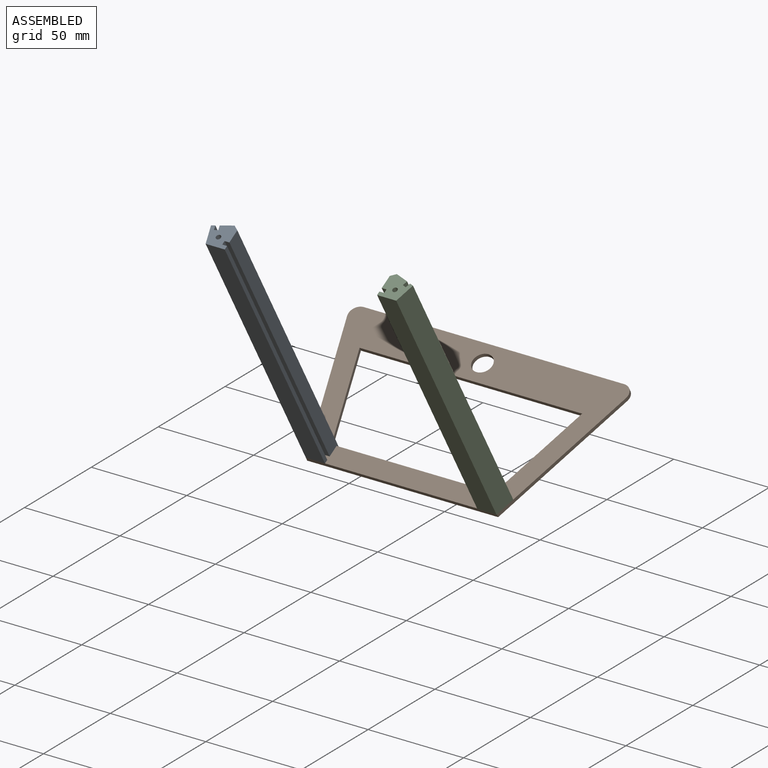
[diagram: assembled view]
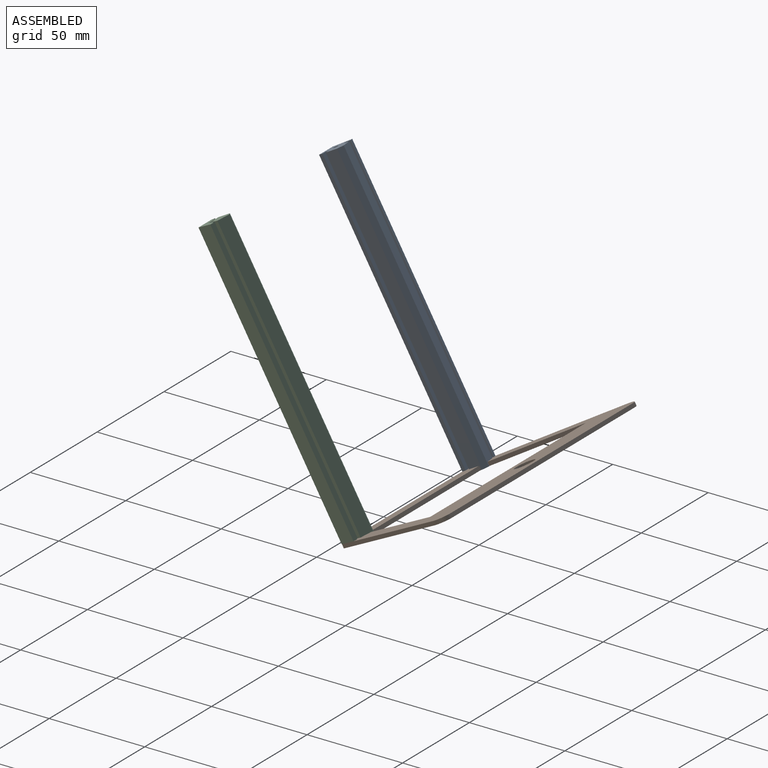
[diagram: assembled view, second angle]
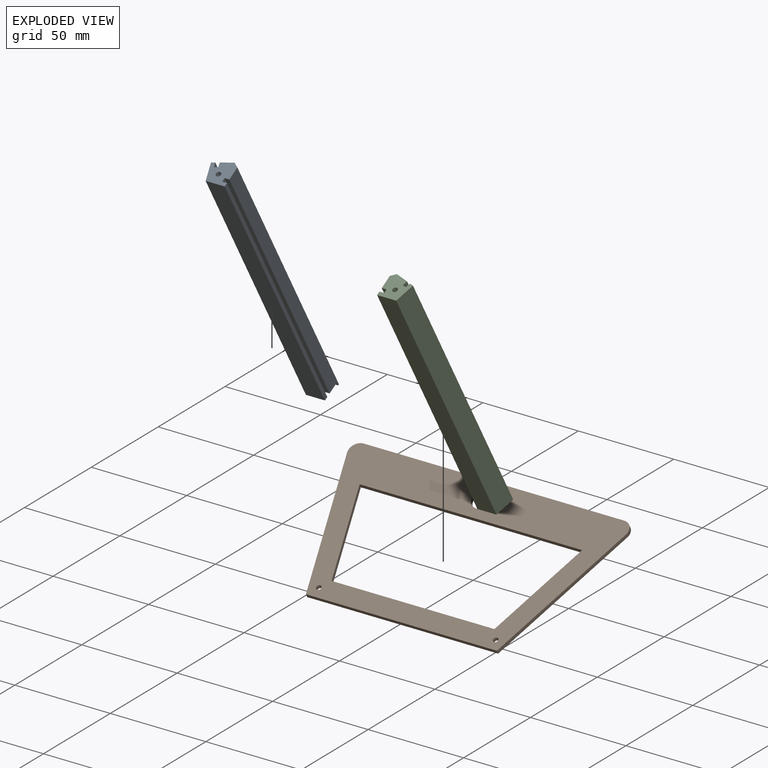
[diagram: exploded view]
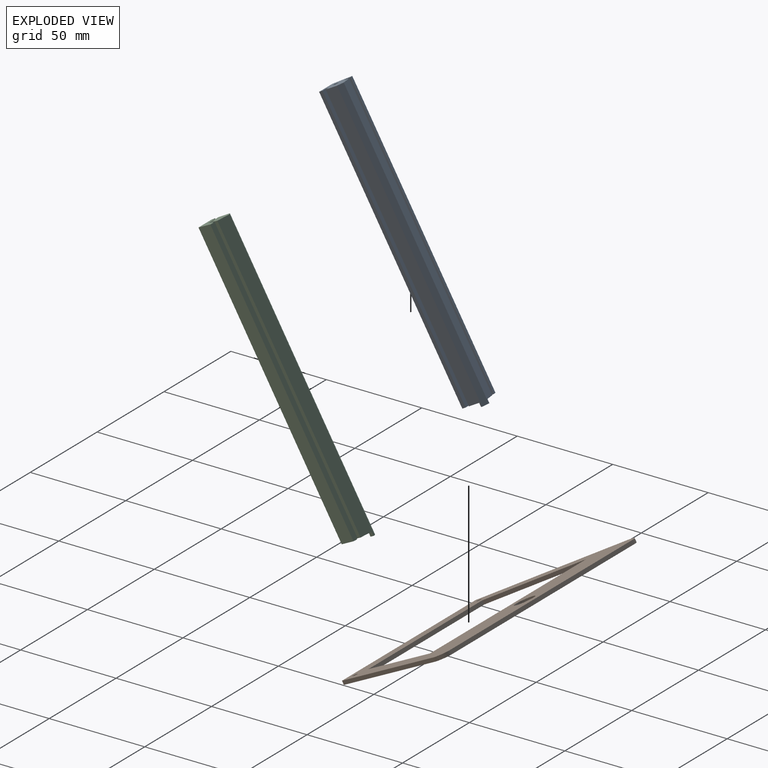
[diagram: exploded view, second angle]
ASSEMBLY  parts=3 mates=3
PART A: 22 faces, bbox 13x87.1x136.3 mm
  f0: plane 131.74x77.78mm, normal (-0.3,0.83,0.48), area 1033.6mm2, adj f1,f12,f13,f14,f15,f16
  f1: plane 131.1x77.07mm, normal (-0.95,-0.26,-0.15), area 375mm2, adj f0,f2,f13,f14
  f2: plane 130.2x75.52mm, normal (-0.3,0.83,0.48), area 300mm2, adj f1,f3,f13,f14
  f3: plane 131.1x77.07mm, normal (0.95,0.26,0.15), area 375mm2, adj f2,f4,f13,f14
  f4: plane 130.2x75.52mm, normal (-0.3,0.83,0.48), area 300mm2, adj f3,f5,f13,f14
  f5: plane 134.68x83.27mm, normal (-0.95,-0.26,-0.15), area 1500mm2, adj f4,f6,f13,f14
  f6: plane 129.9x75mm, normal (0,-0.87,-0.5), area 1500mm2, adj f5,f7,f13,f14
  f7: plane 130.9x76.73mm, normal (1,0,0), area 300mm2, adj f6,f8,f13,f14
  f8: plane 129.9x75mm, normal (0,0.87,0.5), area 375mm2, adj f7,f9,f13,f14
  f9: plane 130.9x76.73mm, normal (1,0,0), area 300mm2, adj f8,f10,f13,f14
  f10: plane 129.9x75mm, normal (0,-0.87,-0.5), area 375mm2, adj f9,f11,f13,f14
  f11: plane 133.34x81.96mm, normal (1,0,0), area 1033.6mm2, adj f10,f12,f13,f14,f15,f17
  f12: plane 132.59x77.65mm, normal (0.59,0.7,0.4), area 489.9mm2, adj f0,f11,f13,f15
  f13: plane 12.98x11.08mm, normal (0,-0.5,0.87), area 117.6mm2, adj f0,f1,f2,f3,f4,f5,f6,f7
  f14: plane 12.98x10.9mm, normal (0,0.5,-0.87), area 112.6mm2, adj f0,f1,f2,f3,f4,f5,f6,f7
  f15: plane 3.25x2.24mm, normal (0,0.5,-0.87), area 5mm2, adj f0,f11,f12,f16,f17
  f16: plane 3.07x2.93mm, normal (-0.95,-0.26,-0.15), area 5mm2, adj f0,f14,f15,f17
  f17: plane 2.5x1.73mm, normal (0,-0.87,-0.5), area 5mm2, adj f11,f14,f15,f16
  f18: cylinder r=1.25mm len=9.91mm, axis (0,-0.5,0.87), area 78.5mm2, adj f13,f19
  f19: plane 2.5x2.17mm, normal (0,-0.5,0.87), area 4.9mm2, adj f18
  f20: cylinder r=1.25mm len=9.91mm, axis (0,0.5,-0.87), area 78.5mm2, adj f14,f21
  f21: plane 2.5x2.17mm, normal (0,0.5,-0.87), area 4.9mm2, adj f20
PART B: 15 faces, bbox 146.4x70.3x41.7 mm
  f0: plane 146.4x69.28mm, normal (0,-0.5,0.87), area 4841.2mm2, adj f2,f3,f4,f5,f6,f7,f8,f9
  f1: plane 146.4x69.28mm, normal (0,0.5,-0.87), area 4841.2mm2, adj f2,f3,f4,f5,f6,f7,f8,f9
  f2: plane 136.4x1.73mm, normal (0,0.87,0.5), area 272.8mm2, adj f0,f1,f3,f10
  f3: cylinder r=5mm len=6.62mm, axis (0,0.5,-0.87), area 18.7mm2, adj f0,f1,f2,f4
  f4: plane 64.66x38.49mm, normal (-0.95,-0.26,-0.15), area 154mm2, adj f0,f1,f3,f5
  f5: plane 100x1.73mm, normal (0,-0.87,-0.5), area 200mm2, adj f0,f1,f4,f6
  f6: plane 64.66x38.49mm, normal (0.95,-0.26,-0.15), area 154mm2, adj f0,f1,f5,f10
  f7: plane 44.3x26.73mm, normal (0.95,0.26,0.15), area 104.8mm2, adj f0,f1,f8,f11
  f8: plane 116.55x1.73mm, normal (0,-0.87,-0.5), area 233.1mm2, adj f0,f1,f7,f9
  f9: plane 44.3x26.73mm, normal (-0.95,0.26,0.15), area 104.8mm2, adj f0,f1,f8,f11
  f10: cylinder r=5mm len=6.62mm, axis (0,0.5,-0.87), area 18.7mm2, adj f0,f1,f2,f6
  f11: plane 85.3x1.73mm, normal (0,0.87,0.5), area 170.6mm2, adj f0,f1,f7,f9
  f12: cylinder r=5.1mm len=10.2mm, axis (0,0.5,-0.87), area 64.1mm2, adj f0,f1
  f13: cylinder r=1.25mm len=3.17mm, axis (0,-0.5,0.87), area 15.7mm2, adj f0,f1
  f14: cylinder r=1.25mm len=3.17mm, axis (0,-0.5,0.87), area 15.7mm2, adj f0,f1
PART C: same geometry as A
PLACE A t=(-43.89,71.42,-58.84)mm
PLACE B t=(-43.89,71.42,-58.84)mm
PLACE C rot(axis=(0,-0.5,0.87),72.6deg) t=(-50.13,67.29,-61.22)mm
MATE fastened B.f0 <-> A.f14  axis (0,-0.5,0.87) through (-93.89,-12.41,-62.61)mm
MATE planar C.f14 <-> B.f0  axis (0,0.5,-0.87) through (1.82,-7.62,-59.84)mm
MATE planar C.f6 <-> B.f6  axis (0.95,-0.26,-0.15) through (7.53,-8.47,-60.33)mm
